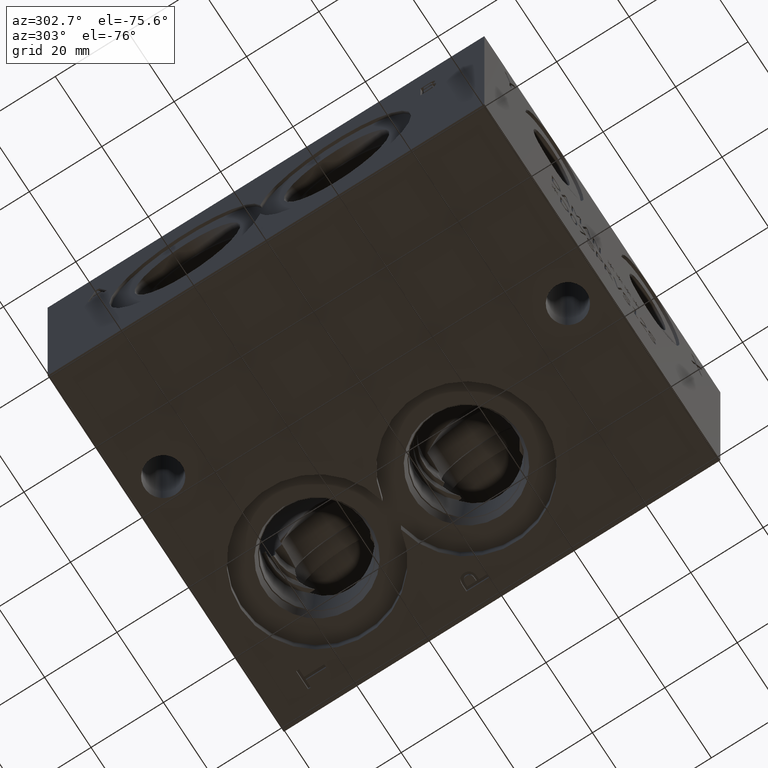
[diagram: clean part render]
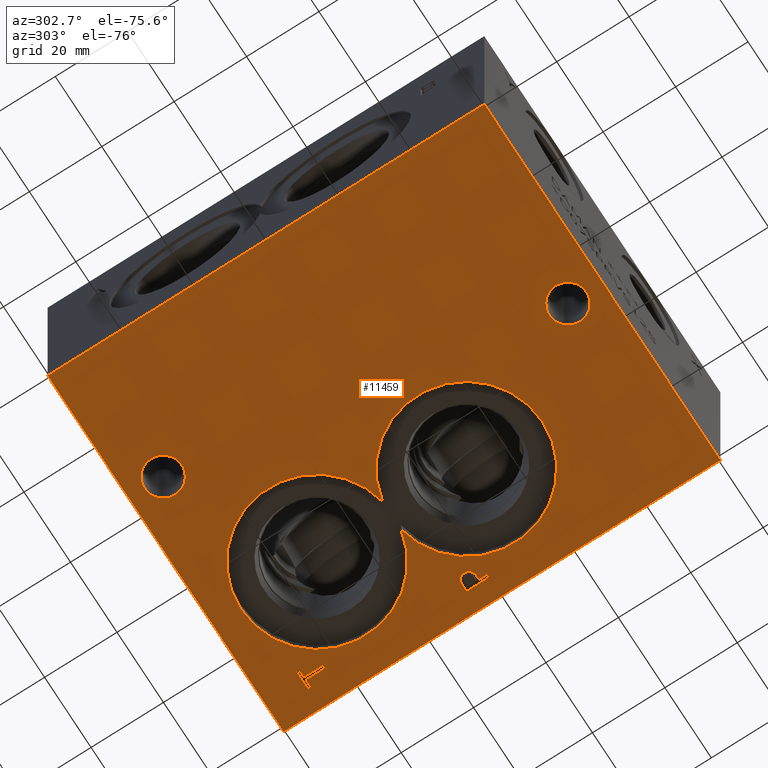
[diagram: same view with one face highlighted and labeled with its STEP entity id]
A machine part, auxiliary view. The second image highlights one B-rep face of the part: STEP entity #11459.
In plain terms, the highlighted planar face has unit normal (0, 0, 1).
Its self-contained STEP definition (entity closure, byte-faithful):
#142=CIRCLE('',#12079,21.0185);
#143=CIRCLE('',#12080,21.0185);
#144=CIRCLE('',#12081,5.1562);
#145=CIRCLE('',#12082,5.1562);
#397=FACE_BOUND('',#1568,.T.);
#398=FACE_BOUND('',#1569,.T.);
#399=FACE_BOUND('',#1570,.T.);
#400=FACE_BOUND('',#1571,.T.);
#401=FACE_BOUND('',#1572,.T.);
#491=B_SPLINE_CURVE_WITH_KNOTS('',2,(#15528,#15529,#15530,#15531),
 .UNSPECIFIED.,.F.,.F.,(3,1,3),(0.,1.,2.),.UNSPECIFIED.);
#493=B_SPLINE_CURVE_WITH_KNOTS('',2,(#15549,#15550,#15551,#15552),
 .UNSPECIFIED.,.F.,.F.,(3,1,3),(0.,1.,2.),.UNSPECIFIED.);
#495=B_SPLINE_CURVE_WITH_KNOTS('',2,(#15598,#15599,#15600,#15601),
 .UNSPECIFIED.,.F.,.F.,(3,1,3),(0.,1.,2.),.UNSPECIFIED.);
#497=B_SPLINE_CURVE_WITH_KNOTS('',2,(#15616,#15617,#15618,#15619),
 .UNSPECIFIED.,.F.,.F.,(3,1,3),(0.,1.,2.),.UNSPECIFIED.);
#953=FACE_OUTER_BOUND('',#1567,.T.);
#1567=EDGE_LOOP('',(#7400,#7401,#7402,#7403));
#1568=EDGE_LOOP('',(#7404,#7405,#7406,#7407,#7408,#7409,#7410,#7411));
#1569=EDGE_LOOP('',(#7412,#7413));
#1570=EDGE_LOOP('',(#7414));
#1571=EDGE_LOOP('',(#7415));
#1572=EDGE_LOOP('',(#7416,#7417,#7418,#7419,#7420,#7421,#7422,#7423,#7424));
#2240=LINE('',#15378,#3350);
#2244=LINE('',#15386,#3354);
#2247=LINE('',#15392,#3357);
#2250=LINE('',#15398,#3360);
#2253=LINE('',#15404,#3363);
#2256=LINE('',#15410,#3366);
#2259=LINE('',#15416,#3369);
#2262=LINE('',#15421,#3372);
#2280=LINE('',#15561,#3390);
#2283=LINE('',#15567,#3393);
#2286=LINE('',#15573,#3396);
#2289=LINE('',#15579,#3399);
#2292=LINE('',#15585,#3402);
#2296=LINE('',#15628,#3406);
#2297=LINE('',#15630,#3407);
#2298=LINE('',#15632,#3408);
#2299=LINE('',#15633,#3409);
#3350=VECTOR('',#12798,10.);
#3354=VECTOR('',#12804,10.);
#3357=VECTOR('',#12809,10.);
#3360=VECTOR('',#12814,10.);
#3363=VECTOR('',#12819,10.);
#3366=VECTOR('',#12824,10.);
#3369=VECTOR('',#12829,10.);
#3372=VECTOR('',#12834,10.);
#3390=VECTOR('',#12862,10.);
#3393=VECTOR('',#12867,10.);
#3396=VECTOR('',#12872,10.);
#3399=VECTOR('',#12877,10.);
#3402=VECTOR('',#12882,10.);
#3406=VECTOR('',#12890,10.);
#3407=VECTOR('',#12891,10.);
#3408=VECTOR('',#12892,10.);
#3409=VECTOR('',#12893,10.);
#4460=VERTEX_POINT('',#15376);
#4461=VERTEX_POINT('',#15377);
#4464=VERTEX_POINT('',#15385);
#4466=VERTEX_POINT('',#15391);
#4468=VERTEX_POINT('',#15397);
#4470=VERTEX_POINT('',#15403);
#4472=VERTEX_POINT('',#15409);
#4474=VERTEX_POINT('',#15415);
#4490=VERTEX_POINT('',#15526);
#4491=VERTEX_POINT('',#15527);
#4494=VERTEX_POINT('',#15548);
#4496=VERTEX_POINT('',#15560);
#4498=VERTEX_POINT('',#15566);
#4500=VERTEX_POINT('',#15572);
#4502=VERTEX_POINT('',#15578);
#4504=VERTEX_POINT('',#15584);
#4506=VERTEX_POINT('',#15597);
#4508=VERTEX_POINT('',#15626);
#4509=VERTEX_POINT('',#15627);
#4510=VERTEX_POINT('',#15629);
#4511=VERTEX_POINT('',#15631);
#4512=VERTEX_POINT('',#15634);
#4513=VERTEX_POINT('',#15635);
#4514=VERTEX_POINT('',#15638);
#4515=VERTEX_POINT('',#15640);
#5603=EDGE_CURVE('',#4460,#4461,#2240,.T.);
#5607=EDGE_CURVE('',#4464,#4460,#2244,.T.);
#5610=EDGE_CURVE('',#4466,#4464,#2247,.T.);
#5613=EDGE_CURVE('',#4468,#4466,#2250,.T.);
#5616=EDGE_CURVE('',#4470,#4468,#2253,.T.);
#5619=EDGE_CURVE('',#4472,#4470,#2256,.T.);
#5622=EDGE_CURVE('',#4474,#4472,#2259,.T.);
#5625=EDGE_CURVE('',#4461,#4474,#2262,.T.);
#5648=EDGE_CURVE('',#4490,#4491,#491,.T.);
#5652=EDGE_CURVE('',#4494,#4490,#493,.T.);
#5655=EDGE_CURVE('',#4496,#4494,#2280,.T.);
#5658=EDGE_CURVE('',#4498,#4496,#2283,.T.);
#5661=EDGE_CURVE('',#4500,#4498,#2286,.T.);
#5664=EDGE_CURVE('',#4502,#4500,#2289,.T.);
#5667=EDGE_CURVE('',#4504,#4502,#2292,.T.);
#5670=EDGE_CURVE('',#4506,#4504,#495,.T.);
#5673=EDGE_CURVE('',#4491,#4506,#497,.T.);
#5675=EDGE_CURVE('',#4508,#4509,#2296,.T.);
#5676=EDGE_CURVE('',#4510,#4508,#2297,.T.);
#5677=EDGE_CURVE('',#4511,#4510,#2298,.T.);
#5678=EDGE_CURVE('',#4509,#4511,#2299,.T.);
#5679=EDGE_CURVE('',#4512,#4513,#142,.T.);
#5680=EDGE_CURVE('',#4513,#4512,#143,.T.);
#5681=EDGE_CURVE('',#4514,#4514,#144,.T.);
#5682=EDGE_CURVE('',#4515,#4515,#145,.T.);
#7400=ORIENTED_EDGE('',*,*,#5675,.F.);
#7401=ORIENTED_EDGE('',*,*,#5676,.F.);
#7402=ORIENTED_EDGE('',*,*,#5677,.F.);
#7403=ORIENTED_EDGE('',*,*,#5678,.F.);
#7404=ORIENTED_EDGE('',*,*,#5603,.T.);
#7405=ORIENTED_EDGE('',*,*,#5625,.T.);
#7406=ORIENTED_EDGE('',*,*,#5622,.T.);
#7407=ORIENTED_EDGE('',*,*,#5619,.T.);
#7408=ORIENTED_EDGE('',*,*,#5616,.T.);
#7409=ORIENTED_EDGE('',*,*,#5613,.T.);
#7410=ORIENTED_EDGE('',*,*,#5610,.T.);
#7411=ORIENTED_EDGE('',*,*,#5607,.T.);
#7412=ORIENTED_EDGE('',*,*,#5679,.T.);
#7413=ORIENTED_EDGE('',*,*,#5680,.T.);
#7414=ORIENTED_EDGE('',*,*,#5681,.T.);
#7415=ORIENTED_EDGE('',*,*,#5682,.T.);
#7416=ORIENTED_EDGE('',*,*,#5648,.T.);
#7417=ORIENTED_EDGE('',*,*,#5673,.T.);
#7418=ORIENTED_EDGE('',*,*,#5670,.T.);
#7419=ORIENTED_EDGE('',*,*,#5667,.T.);
#7420=ORIENTED_EDGE('',*,*,#5664,.T.);
#7421=ORIENTED_EDGE('',*,*,#5661,.T.);
#7422=ORIENTED_EDGE('',*,*,#5658,.T.);
#7423=ORIENTED_EDGE('',*,*,#5655,.T.);
#7424=ORIENTED_EDGE('',*,*,#5652,.T.);
#10652=PLANE('',#12078);
#11459=ADVANCED_FACE('',(#953,#397,#398,#399,#400,#401),#10652,.F.);
#12078=AXIS2_PLACEMENT_3D('',#15625,#12888,#12889);
#12079=AXIS2_PLACEMENT_3D('',#15636,#12894,#12895);
#12080=AXIS2_PLACEMENT_3D('',#15637,#12896,#12897);
#12081=AXIS2_PLACEMENT_3D('',#15639,#12898,#12899);
#12082=AXIS2_PLACEMENT_3D('',#15641,#12900,#12901);
#12798=DIRECTION('',(1.,0.,0.));
#12804=DIRECTION('',(3.17280044688052E-15,-1.,0.));
#12809=DIRECTION('',(1.,0.,0.));
#12814=DIRECTION('',(0.,-1.,0.));
#12819=DIRECTION('',(-1.,-3.47984565141734E-15,0.));
#12824=DIRECTION('',(0.,1.,0.));
#12829=DIRECTION('',(1.,0.,0.));
#12834=DIRECTION('',(-3.17280044688052E-15,1.,0.));
#12862=DIRECTION('',(-1.,-5.56775304226774E-15,0.));
#12867=DIRECTION('',(-2.79741238752512E-15,1.,0.));
#12872=DIRECTION('',(1.,1.05244112384328E-14,0.));
#12877=DIRECTION('',(0.,-1.,0.));
#12882=DIRECTION('',(1.,0.,0.));
#12888=DIRECTION('center_axis',(0.,0.,1.));
#12889=DIRECTION('ref_axis',(1.,0.,0.));
#12890=DIRECTION('',(1.,0.,0.));
#12891=DIRECTION('',(0.,-1.,0.));
#12892=DIRECTION('',(-1.,0.,0.));
#12893=DIRECTION('',(0.,1.,0.));
#12894=DIRECTION('center_axis',(0.,0.,1.));
#12895=DIRECTION('ref_axis',(1.,0.,0.));
#12896=DIRECTION('center_axis',(0.,0.,1.));
#12897=DIRECTION('ref_axis',(1.,0.,0.));
#12898=DIRECTION('center_axis',(0.,0.,1.));
#12899=DIRECTION('ref_axis',(1.,0.,0.));
#12900=DIRECTION('center_axis',(0.,0.,1.));
#12901=DIRECTION('ref_axis',(1.,0.,0.));
#15376=CARTESIAN_POINT('',(93.074584728547,103.98125,0.));
#15377=CARTESIAN_POINT('',(93.9185069200865,103.98125,0.));
#15378=CARTESIAN_POINT('',(71.9372923642735,103.98125,0.));
#15385=CARTESIAN_POINT('',(93.074584728547,109.579953319482,0.));
#15386=CARTESIAN_POINT('',(93.0745847285471,84.9524766597408,0.));
#15391=CARTESIAN_POINT('',(90.9441957816119,109.579953319482,0.));
#15392=CARTESIAN_POINT('',(70.8720978908059,109.579953319482,0.));
#15397=CARTESIAN_POINT('',(90.9441957816119,110.331249904633,0.));
#15398=CARTESIAN_POINT('',(90.9441957816119,85.3281249523163,0.));
#15403=CARTESIAN_POINT('',(96.0488958670216,110.331249904633,0.));
#15404=CARTESIAN_POINT('',(73.4244479335107,110.331249904632,0.));
#15409=CARTESIAN_POINT('',(96.0488958670216,109.579953319482,0.));
#15410=CARTESIAN_POINT('',(96.0488958670216,84.9524766597408,0.));
#15415=CARTESIAN_POINT('',(93.9185069200865,109.579953319482,0.));
#15416=CARTESIAN_POINT('',(72.3592534600432,109.579953319482,0.));
#15421=CARTESIAN_POINT('',(93.9185069200866,82.153125,0.));
#15526=CARTESIAN_POINT('',(92.9369327976406,66.2787681439707,0.));
#15527=CARTESIAN_POINT('',(92.180490345468,64.7607373726039,0.));
#15528=CARTESIAN_POINT('Ctrl Pts',(92.9369327976406,66.2787681439707,0.));
#15529=CARTESIAN_POINT('Ctrl Pts',(92.5818679731514,66.0369123939564,0.));
#15530=CARTESIAN_POINT('Ctrl Pts',(92.180490345468,65.2907616758269,0.));
#15531=CARTESIAN_POINT('Ctrl Pts',(92.180490345468,64.7607373726039,0.));
#15548=CARTESIAN_POINT('',(94.5990478456117,66.6749999046326,0.));
#15549=CARTESIAN_POINT('Ctrl Pts',(94.5990478456117,66.6749999046326,0.));
#15550=CARTESIAN_POINT('Ctrl Pts',(94.0330024732377,66.6749999046326,0.));
#15551=CARTESIAN_POINT('Ctrl Pts',(93.240538951914,66.4897486918556,0.));
#15552=CARTESIAN_POINT('Ctrl Pts',(92.9369327976406,66.2787681439707,0.));
#15560=CARTESIAN_POINT('',(96.1942666223022,66.6749999046326,0.));
#15561=CARTESIAN_POINT('',(73.4971333111511,66.6749999046325,0.));
#15566=CARTESIAN_POINT('',(96.1942666223023,60.325,0.));
#15567=CARTESIAN_POINT('',(96.1942666223023,60.3250000000001,0.));
#15572=CARTESIAN_POINT('',(95.3503444307627,60.325,0.));
#15573=CARTESIAN_POINT('',(73.0751722153814,60.3249999999998,0.));
#15578=CARTESIAN_POINT('',(95.3503444307627,62.6920988299279,0.));
#15579=CARTESIAN_POINT('',(95.3503444307627,61.5085494149639,0.));
#15584=CARTESIAN_POINT('',(94.6350689147628,62.6920988299279,0.));
#15585=CARTESIAN_POINT('',(72.7175344573814,62.6920988299279,0.));
#15597=CARTESIAN_POINT('',(92.7362439837989,63.3507698086904,0.));
#15598=CARTESIAN_POINT('Ctrl Pts',(92.7362439837989,63.3507698086904,0.));
#15599=CARTESIAN_POINT('Ctrl Pts',(93.0655794731802,63.0265801863307,0.));
#15600=CARTESIAN_POINT('Ctrl Pts',(93.955814467914,62.6920988299279,0.));
#15601=CARTESIAN_POINT('Ctrl Pts',(94.6350689147628,62.6920988299279,0.));
#15616=CARTESIAN_POINT('Ctrl Pts',(92.180490345468,64.7607373726039,0.));
#15617=CARTESIAN_POINT('Ctrl Pts',(92.180490345468,64.3490680108774,0.));
#15618=CARTESIAN_POINT('Ctrl Pts',(92.4738047656982,63.6080631597695,0.));
#15619=CARTESIAN_POINT('Ctrl Pts',(92.7362439837989,63.3507698086904,0.));
#15625=CARTESIAN_POINT('Origin',(50.8,60.325,0.));
#15626=CARTESIAN_POINT('',(0.,0.,0.));
#15627=CARTESIAN_POINT('',(101.6,0.,0.));
#15628=CARTESIAN_POINT('',(0.,0.,0.));
#15629=CARTESIAN_POINT('',(0.,120.65,0.));
#15630=CARTESIAN_POINT('',(0.,120.65,0.));
#15631=CARTESIAN_POINT('',(101.6,120.65,0.));
#15632=CARTESIAN_POINT('',(101.6,120.65,0.));
#15633=CARTESIAN_POINT('',(101.6,0.,0.));
#15634=CARTESIAN_POINT('',(75.4340343339049,71.4375,0.));
#15635=CARTESIAN_POINT('',(67.4663656660951,71.4375,0.));
#15636=CARTESIAN_POINT('Origin',(71.4502,92.075,0.));
#15637=CARTESIAN_POINT('Origin',(71.4502,50.8,0.));
#15638=CARTESIAN_POINT('',(29.7688,111.125,0.));
#15639=CARTESIAN_POINT('Origin',(34.925,111.125,0.));
#15640=CARTESIAN_POINT('',(45.6438,9.525,0.));
#15641=CARTESIAN_POINT('Origin',(50.8,9.525,0.));